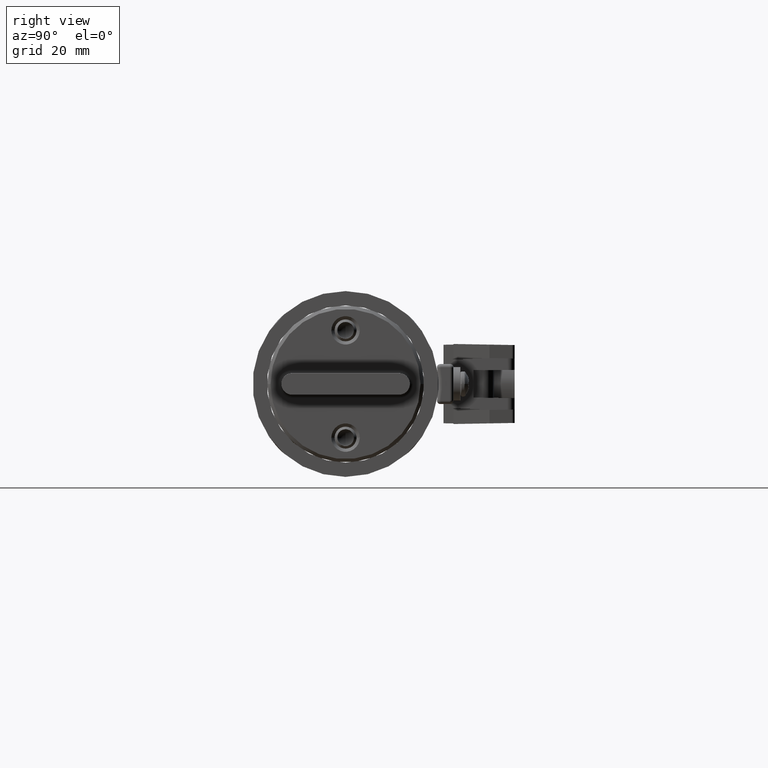
[diagram: clean part render]
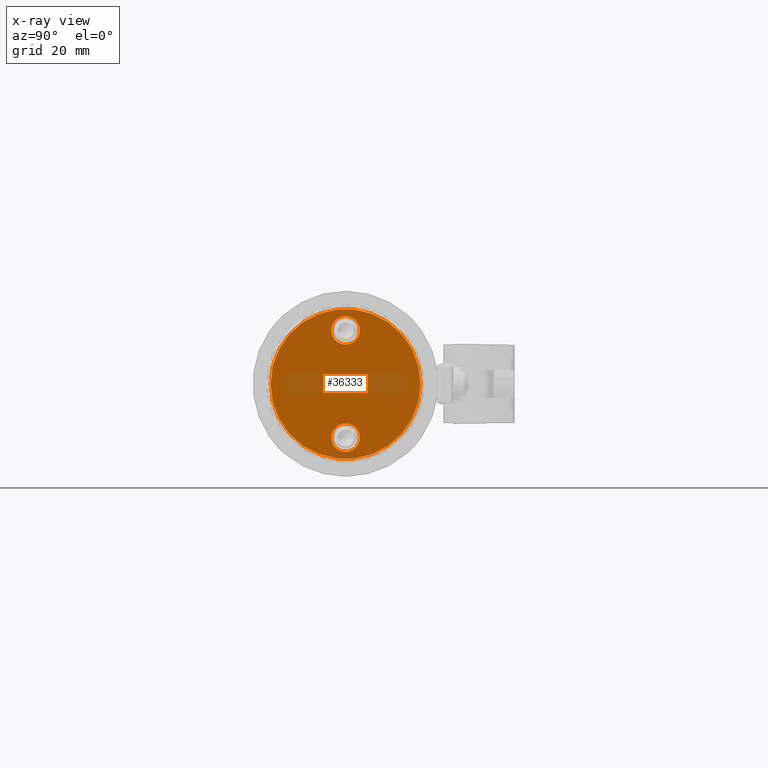
[diagram: x-ray — body ghosted, one internal face saturated and labeled with its STEP entity id]
A machine part, right view, then the same camera in x-ray: the body is ghosted and one INTERNAL B-rep face — a face not visible from any outside direction — is saturated and labeled: STEP entity #36333.
In plain terms, the highlighted planar face has unit normal (1, -0, -0).
Its self-contained STEP definition (entity closure, byte-faithful):
#214 = DIRECTION ( 'NONE',  ( 0.0000000000000000000, 1.000000000000000000, 0.0000000000000000000 ) ) ;
#396 = CARTESIAN_POINT ( 'NONE',  ( 1.250000000000000000, -8.602493717368991900E-017, 0.4689999999999999700 ) ) ;
#508 = EDGE_CURVE ( 'NONE', #35321, #112316, #68255, .T. ) ;
#1631 = ORIENTED_EDGE ( 'NONE', *, *, #508, .T. ) ;
#3631 = ORIENTED_EDGE ( 'NONE', *, *, #88479, .T. ) ;
#4458 = EDGE_CURVE ( 'NONE', #112316, #35321, #63937, .T. ) ;
#6777 = CARTESIAN_POINT ( 'NONE',  ( 1.250000000000000000, -0.6559999999999999200, 2.101854523233716000E-016 ) ) ;
#9519 = DIRECTION ( 'NONE',  ( 0.0000000000000000000, 1.000000000000000000, 0.0000000000000000000 ) ) ;
#12264 = EDGE_LOOP ( 'NONE', ( #3631, #51260 ) ) ;
#12282 = ORIENTED_EDGE ( 'NONE', *, *, #45625, .T. ) ;
#12661 = PLANE ( 'NONE',  #64453 ) ;
#13075 = DIRECTION ( 'NONE',  ( 1.000000000000000000, -1.390854543223398400E-017, -1.885844084249405700E-018 ) ) ;
#14232 = DIRECTION ( 'NONE',  ( -1.000000000000000000, 1.385215645413151800E-017, 1.885844084249406100E-018 ) ) ;
#17479 = DIRECTION ( 'NONE',  ( 1.000000000000000000, -1.385215645413151800E-017, -1.885844084249406100E-018 ) ) ;
#21081 = DIRECTION ( 'NONE',  ( 0.0000000000000000000, 1.000000000000000000, 0.0000000000000000000 ) ) ;
#27130 = AXIS2_PLACEMENT_3D ( 'NONE', #71513, #17479, #80536 ) ;
#27506 = VERTEX_POINT ( 'NONE', #6777 ) ;
#28152 = EDGE_CURVE ( 'NONE', #27506, #53774, #57816, .T. ) ;
#30329 = CARTESIAN_POINT ( 'NONE',  ( 1.250000000000000000, 3.469446951953626500E-018, 0.0000000000000000000 ) ) ;
#35321 = VERTEX_POINT ( 'NONE', #103447 ) ;
#36333 = ADVANCED_FACE ( 'NONE', ( #90356, #66476, #42492 ), #12661, .F. ) ;
#39372 = DIRECTION ( 'NONE',  ( 0.0000000000000000000, 1.000000000000000000, -1.908195823574485100E-016 ) ) ;
#41191 = CARTESIAN_POINT ( 'NONE',  ( 1.250000000000000000, 0.1240000000000004200, 0.4689999999999999700 ) ) ;
#42492 = FACE_BOUND ( 'NONE', #50260, .T. ) ;
#42794 = ORIENTED_EDGE ( 'NONE', *, *, #104154, .T. ) ;
#44987 = CARTESIAN_POINT ( 'NONE',  ( 1.250000000000000000, 0.6560000000000015800, -1.251776460264865200E-016 ) ) ;
#45625 = EDGE_CURVE ( 'NONE', #97303, #83767, #108727, .T. ) ;
#46723 = AXIS2_PLACEMENT_3D ( 'NONE', #88210, #84049, #21081 ) ;
#50260 = EDGE_LOOP ( 'NONE', ( #1631, #64890 ) ) ;
#51260 = ORIENTED_EDGE ( 'NONE', *, *, #28152, .T. ) ;
#53774 = VERTEX_POINT ( 'NONE', #44987 ) ;
#54429 = DIRECTION ( 'NONE',  ( 1.000000000000000000, -1.385215645413151800E-017, -1.885844084249406100E-018 ) ) ;
#57816 = CIRCLE ( 'NONE', #79736, 0.6560000000000015800 ) ;
#61010 = AXIS2_PLACEMENT_3D ( 'NONE', #396, #63621, #9519 ) ;
#63621 = DIRECTION ( 'NONE',  ( 1.000000000000000000, -1.385215645413151800E-017, -1.885844084249406100E-018 ) ) ;
#63937 = CIRCLE ( 'NONE', #61010, 0.1240000000000004000 ) ;
#64228 = CIRCLE ( 'NONE', #112078, 0.1240000000000001400 ) ;
#64453 = AXIS2_PLACEMENT_3D ( 'NONE', #67143, #13075, #76185 ) ;
#64890 = ORIENTED_EDGE ( 'NONE', *, *, #4458, .T. ) ;
#66476 = FACE_BOUND ( 'NONE', #92679, .T. ) ;
#67143 = CARTESIAN_POINT ( 'NONE',  ( 1.250000000000000000, 3.469446951953626500E-018, 0.0000000000000000000 ) ) ;
#68255 = CIRCLE ( 'NONE', #46723, 0.1240000000000004000 ) ;
#68282 = CARTESIAN_POINT ( 'NONE',  ( 1.250000000000000000, 3.469446951953626500E-018, 0.0000000000000000000 ) ) ;
#71513 = CARTESIAN_POINT ( 'NONE',  ( 1.250000000000000000, 3.552789619758618700E-017, -0.4689999999999999700 ) ) ;
#74375 = AXIS2_PLACEMENT_3D ( 'NONE', #68282, #14232, #77352 ) ;
#76185 = DIRECTION ( 'NONE',  ( 1.390854543223398400E-017, 1.000000000000000000, -1.908195823574485100E-016 ) ) ;
#77352 = DIRECTION ( 'NONE',  ( 0.0000000000000000000, 1.000000000000000000, -1.908195823574485100E-016 ) ) ;
#79736 = AXIS2_PLACEMENT_3D ( 'NONE', #30329, #93293, #39372 ) ;
#80536 = DIRECTION ( 'NONE',  ( 0.0000000000000000000, 1.000000000000000000, 0.0000000000000000000 ) ) ;
#83767 = VERTEX_POINT ( 'NONE', #95608 ) ;
#84049 = DIRECTION ( 'NONE',  ( 1.000000000000000000, -1.385215645413151800E-017, -1.885844084249406100E-018 ) ) ;
#88210 = CARTESIAN_POINT ( 'NONE',  ( 1.250000000000000000, -8.602493717368991900E-017, 0.4689999999999999700 ) ) ;
#88373 = CIRCLE ( 'NONE', #74375, 0.6560000000000015800 ) ;
#88479 = EDGE_CURVE ( 'NONE', #53774, #27506, #88373, .T. ) ;
#90356 = FACE_OUTER_BOUND ( 'NONE', #12264, .T. ) ;
#92679 = EDGE_LOOP ( 'NONE', ( #12282, #42794 ) ) ;
#93293 = DIRECTION ( 'NONE',  ( -1.000000000000000000, 1.385215645413151800E-017, 1.885844084249406100E-018 ) ) ;
#95608 = CARTESIAN_POINT ( 'NONE',  ( 1.250000000000000000, 0.1240000000000002600, -0.4689999999999999700 ) ) ;
#97303 = VERTEX_POINT ( 'NONE', #110667 ) ;
#103447 = CARTESIAN_POINT ( 'NONE',  ( 1.250000000000000000, -0.1240000000000006000, 0.4689999999999999700 ) ) ;
#104154 = EDGE_CURVE ( 'NONE', #83767, #97303, #64228, .T. ) ;
#108260 = CARTESIAN_POINT ( 'NONE',  ( 1.250000000000000000, 3.552789619758618700E-017, -0.4689999999999999700 ) ) ;
#108727 = CIRCLE ( 'NONE', #27130, 0.1240000000000001400 ) ;
#110667 = CARTESIAN_POINT ( 'NONE',  ( 1.250000000000000000, -0.1240000000000002100, -0.4689999999999999700 ) ) ;
#112078 = AXIS2_PLACEMENT_3D ( 'NONE', #108260, #54429, #214 ) ;
#112316 = VERTEX_POINT ( 'NONE', #41191 ) ;